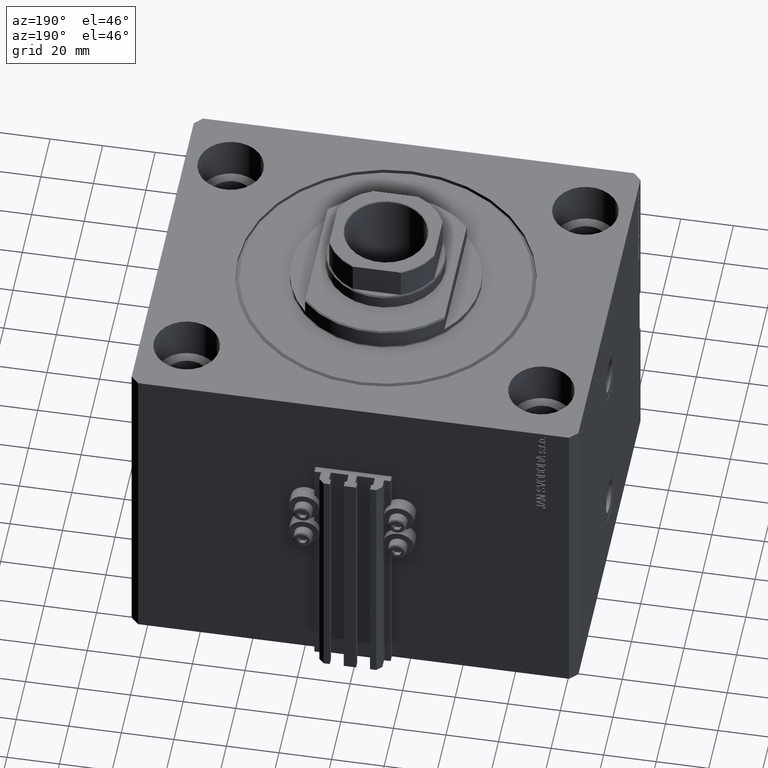
[diagram: clean part render]
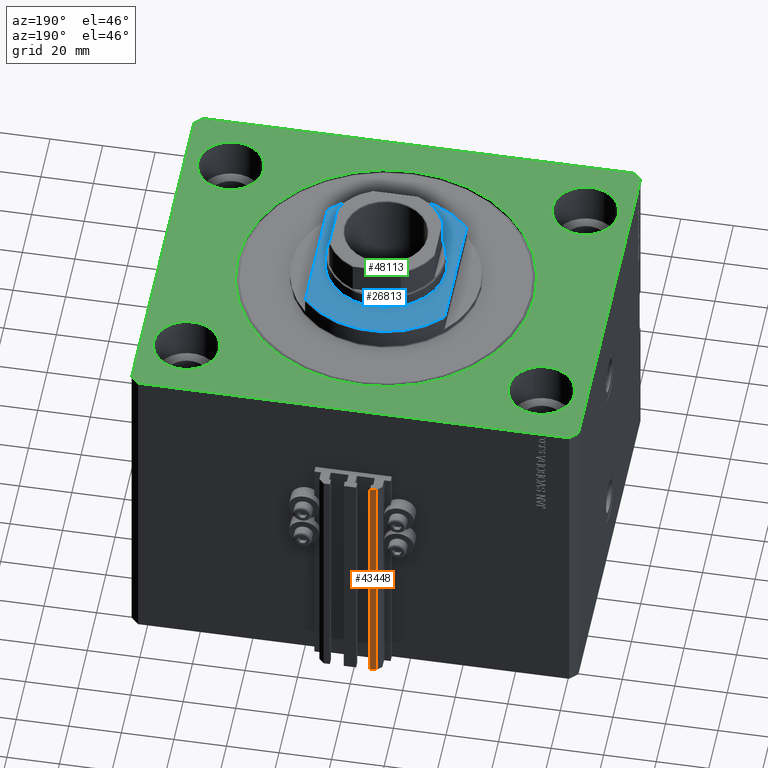
[diagram: same view with three faces highlighted in distinct colors, each labeled with its STEP entity id]
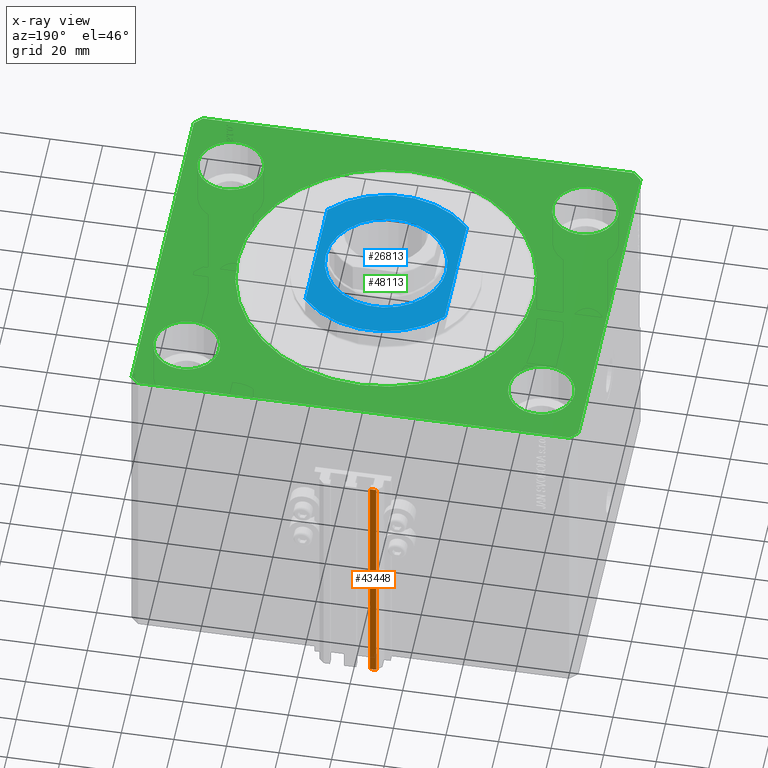
[diagram: x-ray of the same camera — body ghosted, the three highlighted faces saturated]
A machine part, auxiliary view with three faces highlighted in distinct colors.
The next image is the same camera in x-ray (body ghosted, the three faces saturated) — at least one of them is partly hidden behind the body in this view.
Their STEP definitions:

[orange] entity #43448 — the highlighted planar face has unit normal (0, 1, 0).
#3255 = VERTEX_POINT ( 'NONE', #32635 ) ;
#3287 = LINE ( 'NONE', #44671, #36866 ) ;
#4225 = CARTESIAN_POINT ( 'NONE',  ( -7.650000000000002132, 78.00000000000001421, -130.0000000000000000 ) ) ;
#4459 = CARTESIAN_POINT ( 'NONE',  ( -7.650000000000002132, 78.00000000000001421, -130.0000000000000000 ) ) ;
#4689 = PLANE ( 'NONE',  #35880 ) ;
#6148 = DIRECTION ( 'NONE',  ( 0.000000000000000000, 0.000000000000000000, 1.000000000000000000 ) ) ;
#7040 = ORIENTED_EDGE ( 'NONE', *, *, #11543, .F. ) ;
#7560 = VERTEX_POINT ( 'NONE', #13973 ) ;
#7916 = DIRECTION ( 'NONE',  ( -1.000000000000000000, 0.000000000000000000, 0.000000000000000000 ) ) ;
#8140 = DIRECTION ( 'NONE',  ( 0.000000000000000000, 1.000000000000000000, -0.000000000000000000 ) ) ;
#11543 = EDGE_CURVE ( 'NONE', #41436, #7560, #3287, .T. ) ;
#11753 = ORIENTED_EDGE ( 'NONE', *, *, #48086, .T. ) ;
#12729 = VECTOR ( 'NONE', #36894, 1000.000000000000000 ) ;
#13403 = VECTOR ( 'NONE', #7916, 1000.000000000000000 ) ;
#13973 = CARTESIAN_POINT ( 'NONE',  ( -7.650000000000002132, 78.00000000000001421, -33.00000000000000000 ) ) ;
#15103 = ORIENTED_EDGE ( 'NONE', *, *, #22845, .F. ) ;
#15262 = EDGE_CURVE ( 'NONE', #41436, #17295, #22113, .T. ) ;
#17295 = VERTEX_POINT ( 'NONE', #24379 ) ;
#19005 = CARTESIAN_POINT ( 'NONE',  ( -7.650000000000002132, 78.00000000000001421, -33.00000000000000000 ) ) ;
#22113 = LINE ( 'NONE', #4459, #13403 ) ;
#22845 = EDGE_CURVE ( 'NONE', #7560, #3255, #40557, .T. ) ;
#23296 = FACE_OUTER_BOUND ( 'NONE', #23404, .T. ) ;
#23404 = EDGE_LOOP ( 'NONE', ( #15103, #7040, #29248, #11753 ) ) ;
#24379 = CARTESIAN_POINT ( 'NONE',  ( -10.00000000000000000, 78.00000000000001421, -130.0000000000000000 ) ) ;
#25815 = VECTOR ( 'NONE', #6148, 1000.000000000000000 ) ;
#29248 = ORIENTED_EDGE ( 'NONE', *, *, #15262, .T. ) ;
#32635 = CARTESIAN_POINT ( 'NONE',  ( -10.00000000000000000, 78.00000000000001421, -33.00000000000000000 ) ) ;
#32837 = CARTESIAN_POINT ( 'NONE',  ( -10.00000000000000000, 78.00000000000001421, -130.0000000000000000 ) ) ;
#35625 = CARTESIAN_POINT ( 'NONE',  ( -7.650000000000002132, 78.00000000000001421, -130.0000000000000000 ) ) ;
#35880 = AXIS2_PLACEMENT_3D ( 'NONE', #4225, #8140, #45600 ) ;
#36866 = VECTOR ( 'NONE', #40997, 1000.000000000000000 ) ;
#36894 = DIRECTION ( 'NONE',  ( -1.000000000000000000, 0.000000000000000000, 0.000000000000000000 ) ) ;
#39700 = LINE ( 'NONE', #32837, #25815 ) ;
#40557 = LINE ( 'NONE', #19005, #12729 ) ;
#40997 = DIRECTION ( 'NONE',  ( 0.000000000000000000, 0.000000000000000000, 1.000000000000000000 ) ) ;
#41436 = VERTEX_POINT ( 'NONE', #35625 ) ;
#43448 = ADVANCED_FACE ( 'NONE', ( #23296 ), #4689, .T. ) ;
#44671 = CARTESIAN_POINT ( 'NONE',  ( -7.650000000000002132, 78.00000000000001421, -130.0000000000000000 ) ) ;
#45600 = DIRECTION ( 'NONE',  ( 0.000000000000000000, 0.000000000000000000, 1.000000000000000000 ) ) ;
#48086 = EDGE_CURVE ( 'NONE', #17295, #3255, #39700, .T. ) ;

[blue] entity #26813 — the highlighted planar face has unit normal (0, 0, 1).
#530 = DIRECTION ( 'NONE',  ( 0.000000000000000000, -1.000000000000000000, -0.000000000000000000 ) ) ;
#1071 = CARTESIAN_POINT ( 'NONE',  ( 23.00000000000001776, 2.816687638038914718E-15, -8.000000000000000000 ) ) ;
#1527 = ORIENTED_EDGE ( 'NONE', *, *, #10728, .T. ) ;
#1655 = VERTEX_POINT ( 'NONE', #42543 ) ;
#1849 = EDGE_CURVE ( 'NONE', #37811, #1655, #45678, .T. ) ;
#2428 = CIRCLE ( 'NONE', #18054, 23.00000000000001776 ) ;
#2601 = AXIS2_PLACEMENT_3D ( 'NONE', #8286, #23213, #4605 ) ;
#3474 = DIRECTION ( 'NONE',  ( 0.000000000000000000, 0.000000000000000000, -1.000000000000000000 ) ) ;
#3643 = AXIS2_PLACEMENT_3D ( 'NONE', #14970, #10337, #6907 ) ;
#4062 = DIRECTION ( 'NONE',  ( -0.000000000000000000, -1.000000000000000000, -0.000000000000000000 ) ) ;
#4488 = ORIENTED_EDGE ( 'NONE', *, *, #44969, .T. ) ;
#4588 = CARTESIAN_POINT ( 'NONE',  ( -26.50000000000000000, 23.62202362203536765, -8.000000000000000000 ) ) ;
#4605 = DIRECTION ( 'NONE',  ( -1.000000000000000000, 0.000000000000000000, -0.000000000000000000 ) ) ;
#6907 = DIRECTION ( 'NONE',  ( -1.000000000000000000, 0.000000000000000000, 0.000000000000000000 ) ) ;
#8286 = CARTESIAN_POINT ( 'NONE',  ( 0.000000000000000000, 0.000000000000000000, -8.000000000000000000 ) ) ;
#9196 = ORIENTED_EDGE ( 'NONE', *, *, #34490, .T. ) ;
#9345 = CARTESIAN_POINT ( 'NONE',  ( 0.000000000000000000, 0.000000000000000000, -8.000000000000000000 ) ) ;
#9865 = ORIENTED_EDGE ( 'NONE', *, *, #33512, .T. ) ;
#10337 = DIRECTION ( 'NONE',  ( -0.000000000000000000, -0.000000000000000000, 1.000000000000000000 ) ) ;
#10571 = DIRECTION ( 'NONE',  ( -0.000000000000000000, -0.000000000000000000, 1.000000000000000000 ) ) ;
#10728 = EDGE_CURVE ( 'NONE', #26560, #17472, #2428, .T. ) ;
#11481 = FACE_OUTER_BOUND ( 'NONE', #36211, .T. ) ;
#14970 = CARTESIAN_POINT ( 'NONE',  ( 0.000000000000000000, 0.000000000000000000, -8.000000000000000000 ) ) ;
#17472 = VERTEX_POINT ( 'NONE', #1071 ) ;
#18054 = AXIS2_PLACEMENT_3D ( 'NONE', #18164, #10571, #18403 ) ;
#18164 = CARTESIAN_POINT ( 'NONE',  ( 0.000000000000000000, 0.000000000000000000, -8.000000000000000000 ) ) ;
#18403 = DIRECTION ( 'NONE',  ( -1.000000000000000000, 0.000000000000000000, 0.000000000000000000 ) ) ;
#18542 = VECTOR ( 'NONE', #4062, 1000.000000000000000 ) ;
#18957 = CARTESIAN_POINT ( 'NONE',  ( -23.00000000000001776, 0.000000000000000000, -8.000000000000000000 ) ) ;
#19391 = VERTEX_POINT ( 'NONE', #30540 ) ;
#19787 = FACE_BOUND ( 'NONE', #28290, .T. ) ;
#20842 = CIRCLE ( 'NONE', #3643, 23.00000000000001776 ) ;
#21438 = VECTOR ( 'NONE', #530, 1000.000000000000000 ) ;
#21838 = PLANE ( 'NONE',  #2601 ) ;
#22056 = DIRECTION ( 'NONE',  ( -1.000000000000000000, 0.000000000000000000, 0.000000000000000000 ) ) ;
#22669 = CARTESIAN_POINT ( 'NONE',  ( -26.50000000000000000, -36.36963018783666257, -8.000000000000000000 ) ) ;
#23213 = DIRECTION ( 'NONE',  ( 0.000000000000000000, 0.000000000000000000, -1.000000000000000000 ) ) ;
#23878 = CARTESIAN_POINT ( 'NONE',  ( 26.50000000000000000, 23.62202362203536765, -8.000000000000000000 ) ) ;
#23971 = VERTEX_POINT ( 'NONE', #23878 ) ;
#24280 = DIRECTION ( 'NONE',  ( 0.000000000000000000, 0.000000000000000000, -1.000000000000000000 ) ) ;
#25480 = CIRCLE ( 'NONE', #47387, 35.49999999999996447 ) ;
#25745 = CARTESIAN_POINT ( 'NONE',  ( 0.000000000000000000, 0.000000000000000000, -8.000000000000000000 ) ) ;
#26492 = CIRCLE ( 'NONE', #32798, 35.49999999999996447 ) ;
#26560 = VERTEX_POINT ( 'NONE', #18957 ) ;
#26813 = ADVANCED_FACE ( 'NONE', ( #19787, #11481 ), #21838, .T. ) ;
#28290 = EDGE_LOOP ( 'NONE', ( #1527, #9196 ) ) ;
#28982 = EDGE_CURVE ( 'NONE', #23971, #19391, #45358, .T. ) ;
#30540 = CARTESIAN_POINT ( 'NONE',  ( 26.50000000000000000, -23.62202362203536765, -8.000000000000000000 ) ) ;
#32798 = AXIS2_PLACEMENT_3D ( 'NONE', #25745, #3474, #33336 ) ;
#33336 = DIRECTION ( 'NONE',  ( -1.000000000000000000, 0.000000000000000000, 0.000000000000000000 ) ) ;
#33512 = EDGE_CURVE ( 'NONE', #37811, #23971, #25480, .T. ) ;
#34079 = CARTESIAN_POINT ( 'NONE',  ( 26.50000000000000000, -36.36963018783666257, -8.000000000000000000 ) ) ;
#34107 = ORIENTED_EDGE ( 'NONE', *, *, #28982, .T. ) ;
#34490 = EDGE_CURVE ( 'NONE', #17472, #26560, #20842, .T. ) ;
#36211 = EDGE_LOOP ( 'NONE', ( #9865, #34107, #4488, #40647 ) ) ;
#37811 = VERTEX_POINT ( 'NONE', #4588 ) ;
#40647 = ORIENTED_EDGE ( 'NONE', *, *, #1849, .F. ) ;
#42543 = CARTESIAN_POINT ( 'NONE',  ( -26.50000000000000711, -23.62202362203537476, -8.000000000000000000 ) ) ;
#44969 = EDGE_CURVE ( 'NONE', #19391, #1655, #26492, .T. ) ;
#45358 = LINE ( 'NONE', #34079, #21438 ) ;
#45678 = LINE ( 'NONE', #22669, #18542 ) ;
#47387 = AXIS2_PLACEMENT_3D ( 'NONE', #9345, #24280, #22056 ) ;

[green] entity #48113 — the highlighted planar face has unit normal (0, 0, 1).
#87 = ORIENTED_EDGE ( 'NONE', *, *, #45052, .T. ) ;
#419 = CARTESIAN_POINT ( 'NONE',  ( -67.50000000000000000, -47.50000000000000000, 0.000000000000000000 ) ) ;
#620 = DIRECTION ( 'NONE',  ( 1.000000000000000000, 0.000000000000000000, 0.000000000000000000 ) ) ;
#725 = VECTOR ( 'NONE', #32331, 1000.000000000000000 ) ;
#850 = LINE ( 'NONE', #37372, #44957 ) ;
#1258 = VERTEX_POINT ( 'NONE', #7184 ) ;
#1308 = PLANE ( 'NONE',  #25179 ) ;
#1543 = LINE ( 'NONE', #46128, #40947 ) ;
#1665 = ORIENTED_EDGE ( 'NONE', *, *, #27475, .T. ) ;
#2022 = VERTEX_POINT ( 'NONE', #33151 ) ;
#2252 = CARTESIAN_POINT ( 'NONE',  ( 82.00000000000059686, 70.00000000000002842, 0.000000000000000000 ) ) ;
#2987 = CARTESIAN_POINT ( 'NONE',  ( 82.00000000000001421, -70.00000000000000000, 0.000000000000000000 ) ) ;
#2994 = ORIENTED_EDGE ( 'NONE', *, *, #26096, .F. ) ;
#3131 = DIRECTION ( 'NONE',  ( -1.035655806553317576E-16, -1.000000000000000000, 0.000000000000000000 ) ) ;
#3613 = CARTESIAN_POINT ( 'NONE',  ( -85.00000000000000000, 67.00000000000000000, 0.000000000000000000 ) ) ;
#3647 = DIRECTION ( 'NONE',  ( 1.000000000000000000, 0.000000000000000000, 0.000000000000000000 ) ) ;
#4065 = DIRECTION ( 'NONE',  ( 0.000000000000000000, 0.000000000000000000, 1.000000000000000000 ) ) ;
#4958 = AXIS2_PLACEMENT_3D ( 'NONE', #12262, #31615, #30639 ) ;
#5524 = VERTEX_POINT ( 'NONE', #47975 ) ;
#5947 = ORIENTED_EDGE ( 'NONE', *, *, #30090, .F. ) ;
#6385 = FACE_OUTER_BOUND ( 'NONE', #10658, .T. ) ;
#6402 = DIRECTION ( 'NONE',  ( -1.000000000000000000, -1.692413147294439807E-16, 0.000000000000000000 ) ) ;
#6508 = ORIENTED_EDGE ( 'NONE', *, *, #32560, .F. ) ;
#6628 = CARTESIAN_POINT ( 'NONE',  ( 0.000000000000000000, 0.000000000000000000, 0.000000000000000000 ) ) ;
#7184 = CARTESIAN_POINT ( 'NONE',  ( 56.50000000000000711, 0.000000000000000000, 0.000000000000000000 ) ) ;
#7866 = ORIENTED_EDGE ( 'NONE', *, *, #32147, .F. ) ;
#8195 = ORIENTED_EDGE ( 'NONE', *, *, #24053, .T. ) ;
#8220 = ORIENTED_EDGE ( 'NONE', *, *, #23258, .T. ) ;
#8352 = LINE ( 'NONE', #13238, #35154 ) ;
#10044 = LINE ( 'NONE', #36012, #725 ) ;
#10209 = DIRECTION ( 'NONE',  ( 0.000000000000000000, 0.000000000000000000, 1.000000000000000000 ) ) ;
#10425 = VERTEX_POINT ( 'NONE', #11106 ) ;
#10447 = DIRECTION ( 'NONE',  ( 1.000000000000000000, 0.000000000000000000, 0.000000000000000000 ) ) ;
#10545 = FACE_BOUND ( 'NONE', #39990, .T. ) ;
#10630 = DIRECTION ( 'NONE',  ( 0.000000000000000000, 0.000000000000000000, 1.000000000000000000 ) ) ;
#10658 = EDGE_LOOP ( 'NONE', ( #26917, #41229, #12566, #1665, #87, #8220, #21388, #8195 ) ) ;
#10694 = AXIS2_PLACEMENT_3D ( 'NONE', #14312, #15031, #40508 ) ;
#10982 = CARTESIAN_POINT ( 'NONE',  ( -82.00000000000001421, -70.00000000000000000, 0.000000000000000000 ) ) ;
#11106 = CARTESIAN_POINT ( 'NONE',  ( 55.00000000000000711, -47.50000000000000000, 0.000000000000000000 ) ) ;
#11525 = EDGE_CURVE ( 'NONE', #31472, #43198, #38416, .T. ) ;
#11737 = ORIENTED_EDGE ( 'NONE', *, *, #35052, .F. ) ;
#11834 = ORIENTED_EDGE ( 'NONE', *, *, #22790, .F. ) ;
#11889 = VECTOR ( 'NONE', #6402, 1000.000000000000000 ) ;
#12068 = EDGE_CURVE ( 'NONE', #14993, #5524, #22695, .T. ) ;
#12262 = CARTESIAN_POINT ( 'NONE',  ( -67.50000000000000000, 47.50000000000000000, 0.000000000000000000 ) ) ;
#12566 = ORIENTED_EDGE ( 'NONE', *, *, #20740, .T. ) ;
#12796 = CIRCLE ( 'NONE', #4958, 12.49999999999999645 ) ;
#12925 = AXIS2_PLACEMENT_3D ( 'NONE', #46628, #33303, #14692 ) ;
#13022 = CARTESIAN_POINT ( 'NONE',  ( 82.00000000000059686, 70.00000000000002842, 0.000000000000000000 ) ) ;
#13210 = CARTESIAN_POINT ( 'NONE',  ( -56.50000000000000711, 6.919254415182546126E-15, 0.000000000000000000 ) ) ;
#13238 = CARTESIAN_POINT ( 'NONE',  ( 85.00000000000001421, -66.99999999999998579, 0.000000000000000000 ) ) ;
#13390 = CARTESIAN_POINT ( 'NONE',  ( 80.00000000000000000, -47.50000000000000000, 0.000000000000000000 ) ) ;
#13398 = CARTESIAN_POINT ( 'NONE',  ( -67.50000000000000000, -47.50000000000000000, 0.000000000000000000 ) ) ;
#13541 = AXIS2_PLACEMENT_3D ( 'NONE', #13398, #10209, #10447 ) ;
#14312 = CARTESIAN_POINT ( 'NONE',  ( 67.50000000000000000, -47.50000000000000000, 0.000000000000000000 ) ) ;
#14692 = DIRECTION ( 'NONE',  ( 1.000000000000000000, 0.000000000000000000, 0.000000000000000000 ) ) ;
#14993 = VERTEX_POINT ( 'NONE', #37363 ) ;
#15031 = DIRECTION ( 'NONE',  ( 0.000000000000000000, 0.000000000000000000, 1.000000000000000000 ) ) ;
#15963 = CARTESIAN_POINT ( 'NONE',  ( -85.00000000000000000, 67.00000000000000000, 0.000000000000000000 ) ) ;
#16237 = VERTEX_POINT ( 'NONE', #13022 ) ;
#16339 = EDGE_CURVE ( 'NONE', #16237, #44862, #21583, .T. ) ;
#16421 = CARTESIAN_POINT ( 'NONE',  ( 82.00000000000001421, -70.00000000000000000, 0.000000000000000000 ) ) ;
#16530 = EDGE_LOOP ( 'NONE', ( #5947, #11737 ) ) ;
#16724 = VERTEX_POINT ( 'NONE', #10982 ) ;
#18231 = DIRECTION ( 'NONE',  ( -0.7071067811865344721, 0.7071067811865606734, 0.000000000000000000 ) ) ;
#19039 = CARTESIAN_POINT ( 'NONE',  ( -55.00000000000000711, 47.50000000000000000, 0.000000000000000000 ) ) ;
#19124 = VECTOR ( 'NONE', #3131, 1000.000000000000000 ) ;
#19398 = EDGE_LOOP ( 'NONE', ( #32394, #7866 ) ) ;
#19790 = EDGE_CURVE ( 'NONE', #44862, #37338, #850, .T. ) ;
#20220 = VERTEX_POINT ( 'NONE', #13210 ) ;
#20740 = EDGE_CURVE ( 'NONE', #37338, #2022, #37168, .T. ) ;
#20846 = FACE_BOUND ( 'NONE', #44875, .T. ) ;
#21313 = CARTESIAN_POINT ( 'NONE',  ( -80.00000000000000000, 47.50000000000000000, 0.000000000000000000 ) ) ;
#21388 = ORIENTED_EDGE ( 'NONE', *, *, #45897, .T. ) ;
#21583 = LINE ( 'NONE', #2252, #11889 ) ;
#21833 = DIRECTION ( 'NONE',  ( 0.7071067811865459074, 0.7071067811865491270, 0.000000000000000000 ) ) ;
#21908 = VERTEX_POINT ( 'NONE', #13390 ) ;
#22481 = AXIS2_PLACEMENT_3D ( 'NONE', #37854, #4065, #620 ) ;
#22695 = CIRCLE ( 'NONE', #25799, 12.49999999999999645 ) ;
#22790 = EDGE_CURVE ( 'NONE', #29852, #39487, #24476, .T. ) ;
#23098 = AXIS2_PLACEMENT_3D ( 'NONE', #419, #29821, #48204 ) ;
#23258 = EDGE_CURVE ( 'NONE', #42634, #27706, #37514, .T. ) ;
#24053 = EDGE_CURVE ( 'NONE', #45044, #16237, #24846, .T. ) ;
#24376 = ORIENTED_EDGE ( 'NONE', *, *, #27888, .F. ) ;
#24476 = CIRCLE ( 'NONE', #13541, 12.49999999999999645 ) ;
#24671 = CIRCLE ( 'NONE', #12925, 12.49999999999999645 ) ;
#24846 = LINE ( 'NONE', #29494, #38634 ) ;
#24853 = ORIENTED_EDGE ( 'NONE', *, *, #41259, .F. ) ;
#24962 = CARTESIAN_POINT ( 'NONE',  ( 0.000000000000000000, 0.000000000000000000, 0.000000000000000000 ) ) ;
#25179 = AXIS2_PLACEMENT_3D ( 'NONE', #6628, #36274, #44100 ) ;
#25799 = AXIS2_PLACEMENT_3D ( 'NONE', #36584, #28989, #43929 ) ;
#26096 = EDGE_CURVE ( 'NONE', #1258, #20220, #41718, .T. ) ;
#26917 = ORIENTED_EDGE ( 'NONE', *, *, #16339, .T. ) ;
#27475 = EDGE_CURVE ( 'NONE', #2022, #16724, #1543, .T. ) ;
#27613 = VECTOR ( 'NONE', #21833, 1000.000000000000000 ) ;
#27706 = VERTEX_POINT ( 'NONE', #45354 ) ;
#27888 = EDGE_CURVE ( 'NONE', #43198, #31472, #12796, .T. ) ;
#28193 = FACE_BOUND ( 'NONE', #16530, .T. ) ;
#28989 = DIRECTION ( 'NONE',  ( 0.000000000000000000, 0.000000000000000000, 1.000000000000000000 ) ) ;
#29030 = AXIS2_PLACEMENT_3D ( 'NONE', #29255, #10630, #29730 ) ;
#29255 = CARTESIAN_POINT ( 'NONE',  ( -67.50000000000000000, 47.50000000000000000, 0.000000000000000000 ) ) ;
#29310 = AXIS2_PLACEMENT_3D ( 'NONE', #30836, #34277, #45779 ) ;
#29372 = DIRECTION ( 'NONE',  ( 0.000000000000000000, 0.000000000000000000, 1.000000000000000000 ) ) ;
#29494 = CARTESIAN_POINT ( 'NONE',  ( 85.00000000000055422, 66.99999999999997158, 0.000000000000000000 ) ) ;
#29730 = DIRECTION ( 'NONE',  ( 1.000000000000000000, 0.000000000000000000, 0.000000000000000000 ) ) ;
#29821 = DIRECTION ( 'NONE',  ( 0.000000000000000000, 0.000000000000000000, 1.000000000000000000 ) ) ;
#29852 = VERTEX_POINT ( 'NONE', #41454 ) ;
#30090 = EDGE_CURVE ( 'NONE', #21908, #10425, #48093, .T. ) ;
#30245 = DIRECTION ( 'NONE',  ( -0.7071067811865474617, -0.7071067811865474617, 0.000000000000000000 ) ) ;
#30639 = DIRECTION ( 'NONE',  ( 1.000000000000000000, 0.000000000000000000, 0.000000000000000000 ) ) ;
#30836 = CARTESIAN_POINT ( 'NONE',  ( 67.50000000000000000, -47.50000000000000000, 0.000000000000000000 ) ) ;
#31472 = VERTEX_POINT ( 'NONE', #21313 ) ;
#31615 = DIRECTION ( 'NONE',  ( 0.000000000000000000, 0.000000000000000000, 1.000000000000000000 ) ) ;
#32113 = FACE_BOUND ( 'NONE', #19398, .T. ) ;
#32147 = EDGE_CURVE ( 'NONE', #5524, #14993, #24671, .T. ) ;
#32331 = DIRECTION ( 'NONE',  ( 1.000000000000000000, 0.000000000000000000, 0.000000000000000000 ) ) ;
#32394 = ORIENTED_EDGE ( 'NONE', *, *, #12068, .F. ) ;
#32560 = EDGE_CURVE ( 'NONE', #39487, #29852, #41119, .T. ) ;
#33151 = CARTESIAN_POINT ( 'NONE',  ( -85.00000000000001421, -67.00000000000000000, 0.000000000000000000 ) ) ;
#33303 = DIRECTION ( 'NONE',  ( 0.000000000000000000, 0.000000000000000000, 1.000000000000000000 ) ) ;
#33466 = EDGE_LOOP ( 'NONE', ( #6508, #11834 ) ) ;
#34277 = DIRECTION ( 'NONE',  ( 0.000000000000000000, 0.000000000000000000, 1.000000000000000000 ) ) ;
#35052 = EDGE_CURVE ( 'NONE', #10425, #21908, #46677, .T. ) ;
#35154 = VECTOR ( 'NONE', #42149, 1000.000000000000000 ) ;
#36012 = CARTESIAN_POINT ( 'NONE',  ( -82.00000000000001421, -70.00000000000000000, 0.000000000000000000 ) ) ;
#36274 = DIRECTION ( 'NONE',  ( 0.000000000000000000, 0.000000000000000000, 1.000000000000000000 ) ) ;
#36584 = CARTESIAN_POINT ( 'NONE',  ( 67.50000000000000000, 47.50000000000001421, 0.000000000000000000 ) ) ;
#37168 = LINE ( 'NONE', #3613, #19124 ) ;
#37338 = VERTEX_POINT ( 'NONE', #15963 ) ;
#37363 = CARTESIAN_POINT ( 'NONE',  ( 80.00000000000000000, 47.50000000000001421, 0.000000000000000000 ) ) ;
#37372 = CARTESIAN_POINT ( 'NONE',  ( -82.00000000000000000, 70.00000000000000000, 0.000000000000000000 ) ) ;
#37514 = LINE ( 'NONE', #2987, #27613 ) ;
#37854 = CARTESIAN_POINT ( 'NONE',  ( 0.000000000000000000, 0.000000000000000000, 0.000000000000000000 ) ) ;
#38008 = CARTESIAN_POINT ( 'NONE',  ( -55.00000000000000711, -47.50000000000000000, 0.000000000000000000 ) ) ;
#38284 = DIRECTION ( 'NONE',  ( 0.7071067811865474617, -0.7071067811865474617, 0.000000000000000000 ) ) ;
#38416 = CIRCLE ( 'NONE', #29030, 12.49999999999999645 ) ;
#38543 = FACE_BOUND ( 'NONE', #33466, .T. ) ;
#38634 = VECTOR ( 'NONE', #18231, 1000.000000000000000 ) ;
#39487 = VERTEX_POINT ( 'NONE', #38008 ) ;
#39990 = EDGE_LOOP ( 'NONE', ( #24376, #46550 ) ) ;
#40141 = AXIS2_PLACEMENT_3D ( 'NONE', #24962, #29372, #3647 ) ;
#40508 = DIRECTION ( 'NONE',  ( 1.000000000000000000, 0.000000000000000000, 0.000000000000000000 ) ) ;
#40947 = VECTOR ( 'NONE', #38284, 1000.000000000000114 ) ;
#41119 = CIRCLE ( 'NONE', #23098, 12.49999999999999645 ) ;
#41181 = CARTESIAN_POINT ( 'NONE',  ( -82.00000000000000000, 70.00000000000000000, 0.000000000000000000 ) ) ;
#41229 = ORIENTED_EDGE ( 'NONE', *, *, #19790, .T. ) ;
#41259 = EDGE_CURVE ( 'NONE', #20220, #1258, #44400, .T. ) ;
#41454 = CARTESIAN_POINT ( 'NONE',  ( -80.00000000000000000, -47.50000000000000000, 0.000000000000000000 ) ) ;
#41718 = CIRCLE ( 'NONE', #40141, 56.50000000000000711 ) ;
#42149 = DIRECTION ( 'NONE',  ( 3.935492064902608811E-15, 1.000000000000000000, 0.000000000000000000 ) ) ;
#42634 = VERTEX_POINT ( 'NONE', #16421 ) ;
#43198 = VERTEX_POINT ( 'NONE', #19039 ) ;
#43929 = DIRECTION ( 'NONE',  ( 1.000000000000000000, 0.000000000000000000, 0.000000000000000000 ) ) ;
#44100 = DIRECTION ( 'NONE',  ( 1.000000000000000000, 0.000000000000000000, -0.000000000000000000 ) ) ;
#44400 = CIRCLE ( 'NONE', #22481, 56.50000000000000711 ) ;
#44862 = VERTEX_POINT ( 'NONE', #41181 ) ;
#44875 = EDGE_LOOP ( 'NONE', ( #2994, #24853 ) ) ;
#44957 = VECTOR ( 'NONE', #30245, 1000.000000000000114 ) ;
#45044 = VERTEX_POINT ( 'NONE', #47277 ) ;
#45052 = EDGE_CURVE ( 'NONE', #16724, #42634, #10044, .T. ) ;
#45354 = CARTESIAN_POINT ( 'NONE',  ( 85.00000000000001421, -66.99999999999998579, 0.000000000000000000 ) ) ;
#45779 = DIRECTION ( 'NONE',  ( 1.000000000000000000, 0.000000000000000000, 0.000000000000000000 ) ) ;
#45897 = EDGE_CURVE ( 'NONE', #27706, #45044, #8352, .T. ) ;
#46128 = CARTESIAN_POINT ( 'NONE',  ( -85.00000000000001421, -67.00000000000000000, 0.000000000000000000 ) ) ;
#46550 = ORIENTED_EDGE ( 'NONE', *, *, #11525, .F. ) ;
#46628 = CARTESIAN_POINT ( 'NONE',  ( 67.50000000000000000, 47.50000000000001421, 0.000000000000000000 ) ) ;
#46677 = CIRCLE ( 'NONE', #10694, 12.49999999999999645 ) ;
#47277 = CARTESIAN_POINT ( 'NONE',  ( 85.00000000000055422, 66.99999999999997158, 0.000000000000000000 ) ) ;
#47975 = CARTESIAN_POINT ( 'NONE',  ( 55.00000000000000711, 47.50000000000001421, 0.000000000000000000 ) ) ;
#48093 = CIRCLE ( 'NONE', #29310, 12.49999999999999645 ) ;
#48113 = ADVANCED_FACE ( 'NONE', ( #38543, #28193, #32113, #10545, #20846, #6385 ), #1308, .T. ) ;
#48204 = DIRECTION ( 'NONE',  ( 1.000000000000000000, 0.000000000000000000, 0.000000000000000000 ) ) ;